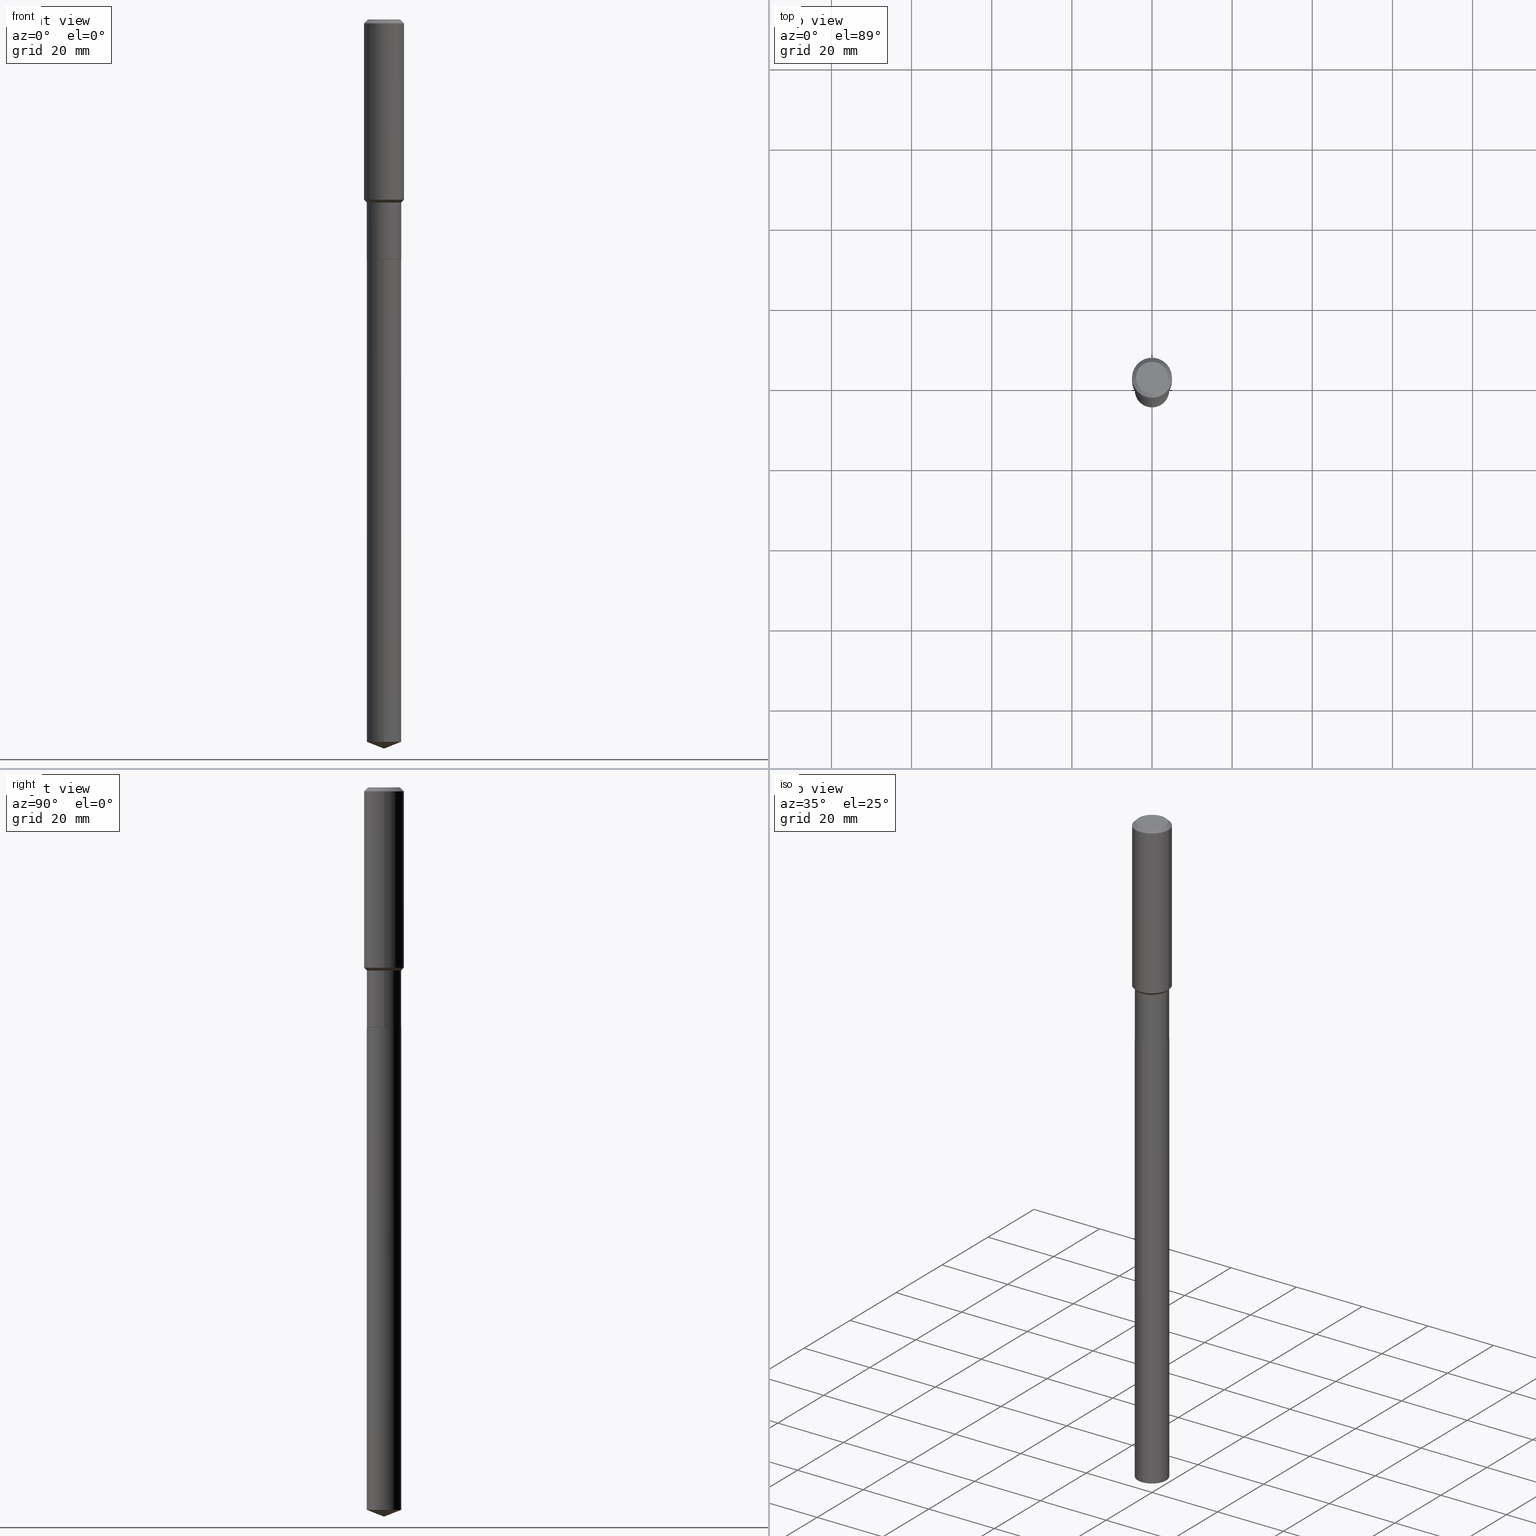
[diagram: canonical four-view strip — front | top / right | iso, engineering-drawing reading convention]
A machine part, canonical four-view strip (front | top / right | iso — engineering-drawing reading convention). The complete STEP part file that produces these views, byte-faithful:
ISO-10303-21;
HEADER;
FILE_DESCRIPTION (( 'STEP AP203' ),
    '1' );
FILE_NAME ('66765.STEP',
    '2024-04-25T05:38:47',
    ( '' ),
    ( '' ),
    'SwSTEP 2.0',
    'SolidWorks 2023',
    '' );
FILE_SCHEMA (( 'CONFIG_CONTROL_DESIGN' ));
ENDSEC;

DATA;
#1 = DIRECTION ( 'NONE',  ( 1.000000000000000000, -6.982962677686260400E-15, 0.000000000000000000 ) ) ;
#2 = FACE_OUTER_BOUND ( 'NONE', #262, .T. ) ;
#3 = CARTESIAN_POINT ( 'NONE',  ( 1.202948851642023404E-15, 0.1692999999999752758, -7.098310956478392164 ) ) ;
#4 = AXIS2_PLACEMENT_3D ( 'NONE', #371, #470, #468 ) ;
#5 = CC_DESIGN_APPROVAL ( #312, ( #393 ) ) ;
#6 = ADVANCED_FACE ( 'NONE', ( #391 ), #267, .T. ) ;
#7 = CYLINDRICAL_SURFACE ( 'NONE', #154, 0.1692999999999999783 ) ;
#8 = APPROVAL_STATUS ( 'not_yet_approved' ) ;
#9 = VERTEX_POINT ( 'NONE', #83 ) ;
#10 = CARTESIAN_POINT ( 'NONE',  ( 4.399887476088297056E-29, -6.281873224846586144E-15, -1.799199999999999688 ) ) ;
#11 = CARTESIAN_POINT ( 'NONE',  ( -0.1692999999999999783, 1.202948851641849460E-15, -8.327757107801554310E-30 ) ) ;
#12 = ADVANCED_FACE ( 'NONE', ( #81 ), #278, .T. ) ;
#13 = AXIS2_PLACEMENT_3D ( 'NONE', #426, #281, #244 ) ;
#14 = DIRECTION ( 'NONE',  ( -2.445468806185136597E-29, 3.491481338843145583E-15, 1.000000000000000000 ) ) ;
#15 = PERSON_AND_ORGANIZATION ( #447, #261 ) ;
#16 = DIRECTION ( 'NONE',  ( 1.000000000000000000, -6.982962677686266711E-15, 0.000000000000000000 ) ) ;
#17 = PERSON_AND_ORGANIZATION ( #447, #261 ) ;
#18 = DIRECTION ( 'NONE',  ( 1.000000000000000000, -6.982962677686265922E-15, 0.000000000000000000 ) ) ;
#19 = EDGE_CURVE ( 'NONE', #31, #99, #120, .T. ) ;
#20 = VECTOR ( 'NONE', #328, 39.37007874015748143 ) ;
#21 = APPROVAL_DATE_TIME ( #369, #312 ) ;
#22 = ADVANCED_FACE ( 'NONE', ( #392 ), #226, .T. ) ;
#23 = VERTEX_POINT ( 'NONE', #187 ) ;
#24 = ADVANCED_FACE ( 'NONE', ( #359 ), #461, .T. ) ;
#25 = VERTEX_POINT ( 'NONE', #355 ) ;
#26 = AXIS2_PLACEMENT_3D ( 'NONE', #264, #107, #159 ) ;
#27 =( GEOMETRIC_REPRESENTATION_CONTEXT ( 3 ) GLOBAL_UNCERTAINTY_ASSIGNED_CONTEXT ( ( #343 ) ) GLOBAL_UNIT_ASSIGNED_CONTEXT ( ( #340, #207, #139 ) ) REPRESENTATION_CONTEXT ( 'NONE', 'WORKASPACE' ) );
#28 = VERTEX_POINT ( 'NONE', #3 ) ;
#29 = DIRECTION ( 'NONE',  ( 1.000000000000000000, -6.982962677686265922E-15, 0.000000000000000000 ) ) ;
#30 = MANIFOLD_SOLID_BREP ( 'Body-Move/Copy2[1]', #208 ) ;
#31 = VERTEX_POINT ( 'NONE', #162 ) ;
#32 = DIRECTION ( 'NONE',  ( -2.445468806185136877E-29, 3.491481338843145188E-15, 1.000000000000000000 ) ) ;
#33 = ORIENTED_EDGE ( 'NONE', *, *, #381, .T. ) ;
#34 = CARTESIAN_POINT ( 'NONE',  ( 1.735857678441068826E-28, -2.478379385907393533E-14, -7.098310956478391276 ) ) ;
#35 = VECTOR ( 'NONE', #282, 39.37007874015748143 ) ;
#36 = ORIENTED_EDGE ( 'NONE', *, *, #149, .F. ) ;
#37 = MANIFOLD_SOLID_BREP ( 'Body-Move/Copy2[2]', #200 ) ;
#38 = DIRECTION ( 'NONE',  ( -2.445443231132570637E-29, 3.491517963774061595E-15, 1.000000000000000000 ) ) ;
#39 = ORIENTED_EDGE ( 'NONE', *, *, #388, .F. ) ;
#40 = FACE_OUTER_BOUND ( 'NONE', #410, .T. ) ;
#41 = ORIENTED_EDGE ( 'NONE', *, *, #157, .T. ) ;
#42 = CC_DESIGN_DATE_AND_TIME_ASSIGNMENT ( #191, #131, ( #104 ) ) ;
#43 = CARTESIAN_POINT ( 'NONE',  ( -0.1968500000000002192, -4.786979538617699171E-15, -1.771649999999999725 ) ) ;
#44 = ORIENTED_EDGE ( 'NONE', *, *, #64, .F. ) ;
#45 = CIRCLE ( 'NONE', #4, 0.1688000000000000334 ) ;
#46 = CIRCLE ( 'NONE', #130, 0.1692999999999999505 ) ;
#47 = CARTESIAN_POINT ( 'NONE',  ( -0.1693000000000000338, -6.053396814875857644E-15, -2.357399999999999718 ) ) ;
#48 = ORIENTED_EDGE ( 'NONE', *, *, #165, .F. ) ;
#49 = CARTESIAN_POINT ( 'NONE',  ( 0.1968500000000001082, -1.374596203102542397E-15, 9.598753983154305062E-30 ) ) ;
#50 = DIRECTION ( 'NONE',  ( 6.611014441532069744E-15, 0.9304175679820275713, 0.3665012267242894195 ) ) ;
#51 = ADVANCED_FACE ( 'NONE', ( #164 ), #133, .T. ) ;
#52 = AXIS2_PLACEMENT_3D ( 'NONE', #123, #323, #367 ) ;
#53 = CARTESIAN_POINT ( 'NONE',  ( -0.1968500000000000250, 1.237136582792286225E-15, -0.03937000000000026589 ) ) ;
#54 = CARTESIAN_POINT ( 'NONE',  ( 0.000000000000000000, 0.000000000000000000, 0.000000000000000000 ) ) ;
#55 = DATE_TIME_ROLE ( 'creation_date' ) ;
#56 = DIRECTION ( 'NONE',  ( -2.445468806185136597E-29, 3.491481338843145583E-15, 1.000000000000000000 ) ) ;
#57 = ADVANCED_FACE ( 'NONE', ( #89 ), #372, .T. ) ;
#58 = APPROVAL_DATE_TIME ( #134, #178 ) ;
#59 = DIRECTION ( 'NONE',  ( -6.497071151882122203E-15, -0.9304175679820250178, 0.3665012267242960253 ) ) ;
#60 = AXIS2_PLACEMENT_3D ( 'NONE', #126, #212, #304 ) ;
#61 = EDGE_CURVE ( 'NONE', #458, #306, #403, .T. ) ;
#62 = PERSON_AND_ORGANIZATION_ROLE ( 'design_supplier' ) ;
#63 = ORIENTED_EDGE ( 'NONE', *, *, #165, .T. ) ;
#64 = EDGE_CURVE ( 'NONE', #306, #231, #167, .T. ) ;
#65 = EDGE_LOOP ( 'NONE', ( #101, #33 ) ) ;
#66 = ORIENTED_EDGE ( 'NONE', *, *, #342, .T. ) ;
#67 = VECTOR ( 'NONE', #158, 39.37007874015748143 ) ;
#68 = CC_DESIGN_SECURITY_CLASSIFICATION ( #104, ( #393 ) ) ;
#69 = EDGE_LOOP ( 'NONE', ( #147, #416 ) ) ;
#70 = ORIENTED_EDGE ( 'NONE', *, *, #475, .F. ) ;
#71 = CC_DESIGN_PERSON_AND_ORGANIZATION_ASSIGNMENT ( #17, #249, ( #393 ) ) ;
#72 = DIRECTION ( 'NONE',  ( -2.445468806185136597E-29, 3.491481338843145583E-15, 1.000000000000000000 ) ) ;
#73 = DIRECTION ( 'NONE',  ( 2.445468806185136597E-29, -3.491481338843145583E-15, -1.000000000000000000 ) ) ;
#74 = CARTESIAN_POINT ( 'NONE',  ( 0.1968500000000000250, -1.512055823412797189E-15, -0.03937000000000026589 ) ) ;
#75 = VECTOR ( 'NONE', #32, 39.37007874015748143 ) ;
#76 = EDGE_LOOP ( 'NONE', ( #489, #383, #437, #39 ) ) ;
#77 = CARTESIAN_POINT ( 'NONE',  ( -1.182215581332227426E-15, -0.1693000000000082494, -2.357899999999998997 ) ) ;
#78 = EDGE_CURVE ( 'NONE', #99, #31, #45, .T. ) ;
#79 = EDGE_LOOP ( 'NONE', ( #277, #455, #441, #272 ) ) ;
#80 = CARTESIAN_POINT ( 'NONE',  ( 0.1968500000000000250, -1.487948651171581601E-15, -0.03937000000000026589 ) ) ;
#81 = FACE_OUTER_BOUND ( 'NONE', #174, .T. ) ;
#82 = LINE ( 'NONE', #400, #462 ) ;
#83 = CARTESIAN_POINT ( 'NONE',  ( 0.1692999999999999505, -7.464088806178870959E-15, -1.799199999999999688 ) ) ;
#84 = CIRCLE ( 'NONE', #145, 0.1693000000000000338 ) ;
#85 = APPROVAL_PERSON_ORGANIZATION ( #374, #312, #203 ) ;
#86 = CARTESIAN_POINT ( 'NONE',  ( -0.1574800000000000089, 1.168406772637159618E-15, 3.855188123707939751E-18 ) ) ;
#87 = DIRECTION ( 'NONE',  ( -2.445443231132570637E-29, 3.491517963774061595E-15, 1.000000000000000000 ) ) ;
#88 = CARTESIAN_POINT ( 'NONE',  ( 5.764948163700840429E-29, -8.230818108188830037E-15, -2.357399999999999718 ) ) ;
#89 = FACE_OUTER_BOUND ( 'NONE', #76, .T. ) ;
#90 = PERSON_AND_ORGANIZATION_ROLE ( 'creator' ) ;
#91 = LINE ( 'NONE', #362, #35 ) ;
#92 = EDGE_CURVE ( 'NONE', #25, #409, #313, .T. ) ;
#93 = AXIS2_PLACEMENT_3D ( 'NONE', #358, #72, #350 ) ;
#94 = CIRCLE ( 'NONE', #245, 0.1968500000000002192 ) ;
#95 = COORDINATED_UNIVERSAL_TIME_OFFSET ( 5, 0, .BEHIND. ) ;
#96 = DIRECTION ( 'NONE',  ( -2.445468806185136597E-29, 3.491481338843145583E-15, 1.000000000000000000 ) ) ;
#97 = CC_DESIGN_PERSON_AND_ORGANIZATION_ASSIGNMENT ( #318, #474, ( #104 ) ) ;
#98 = DIRECTION ( 'NONE',  ( 6.982962677686265922E-15, 1.000000000000000000, -3.491517963774061595E-15 ) ) ;
#99 = VERTEX_POINT ( 'NONE', #202 ) ;
#100 = CIRCLE ( 'NONE', #356, 0.1693000000000000338 ) ;
#101 = ORIENTED_EDGE ( 'NONE', *, *, #270, .T. ) ;
#102 = ORIENTED_EDGE ( 'NONE', *, *, #241, .F. ) ;
#103 = CIRCLE ( 'NONE', #220, 0.1693000000000000338 ) ;
#104 = SECURITY_CLASSIFICATION ( '', '', #168 ) ;
#105 = ORIENTED_EDGE ( 'NONE', *, *, #78, .F. ) ;
#106 = CARTESIAN_POINT ( 'NONE',  ( -4.713871149261283817E-47, 6.730158695841841775E-33, 1.927594061857935365E-18 ) ) ;
#107 = DIRECTION ( 'NONE',  ( -2.445443231132570637E-29, 3.491517963774061595E-15, 1.000000000000000000 ) ) ;
#108 = ADVANCED_FACE ( 'NONE', ( #288 ), #240, .F. ) ;
#109 = DIRECTION ( 'NONE',  ( 1.000000000000000000, -6.982962677686266711E-15, 0.000000000000000000 ) ) ;
#110 = DIRECTION ( 'NONE',  ( -1.000000000000000000, 6.982962677686265922E-15, 0.000000000000000000 ) ) ;
#111 = EDGE_CURVE ( 'NONE', #31, #345, #325, .T. ) ;
#112 = LINE ( 'NONE', #344, #386 ) ;
#113 = CONICAL_SURFACE ( 'NONE', #445, 0.1692999999999999505, 0.7853981633974513876 ) ;
#114 = DIRECTION ( 'NONE',  ( 1.000000000000000000, -6.982962677686260400E-15, 0.000000000000000000 ) ) ;
#115 = FACE_OUTER_BOUND ( 'NONE', #180, .T. ) ;
#116 = APPROVAL_STATUS ( 'not_yet_approved' ) ;
#117 = ORIENTED_EDGE ( 'NONE', *, *, #388, .T. ) ;
#118 = DIRECTION ( 'NONE',  ( -6.982962677686268288E-15, -1.000000000000000000, 3.498627837349993178E-15 ) ) ;
#119 = FACE_OUTER_BOUND ( 'NONE', #177, .T. ) ;
#120 = CIRCLE ( 'NONE', #219, 0.1688000000000000334 ) ;
#121 = CARTESIAN_POINT ( 'NONE',  ( 5.766170898103932109E-29, -8.232563848858250751E-15, -2.357899999999999441 ) ) ;
#122 = CC_DESIGN_APPROVAL ( #258, ( #251 ) ) ;
#123 = CARTESIAN_POINT ( 'NONE',  ( 5.766170898103932109E-29, -8.232563848858250751E-15, -2.357899999999999441 ) ) ;
#124 = DIRECTION ( 'NONE',  ( 0.7071067811866199593, -2.468850131083015945E-15, 0.7071067811864750752 ) ) ;
#125 = DIRECTION ( 'NONE',  ( -2.445468806185136597E-29, 3.491481338843145583E-15, 1.000000000000000000 ) ) ;
#126 = CARTESIAN_POINT ( 'NONE',  ( 0.000000000000000000, 0.000000000000000000, 0.000000000000000000 ) ) ;
#127 = ADVANCED_FACE ( 'NONE', ( #283 ), #242, .T. ) ;
#128 = CYLINDRICAL_SURFACE ( 'NONE', #424, 0.1968500000000001082 ) ;
#129 = CARTESIAN_POINT ( 'NONE',  ( 1.752160075106486732E-28, -2.501672621044114802E-14, -7.165000000000000036 ) ) ;
#130 = AXIS2_PLACEMENT_3D ( 'NONE', #10, #427, #16 ) ;
#131 = DATE_TIME_ROLE ( 'classification_date' ) ;
#132 = CARTESIAN_POINT ( 'NONE',  ( 0.1693000000000000338, -9.413033689521114852E-15, -2.357399999999999718 ) ) ;
#133 = CYLINDRICAL_SURFACE ( 'NONE', #294, 0.1692999999999999783 ) ;
#134 = DATE_AND_TIME ( #476, #486 ) ;
#135 = VERTEX_POINT ( 'NONE', #43 ) ;
#136 = EDGE_CURVE ( 'NONE', #409, #25, #322, .T. ) ;
#137 = CIRCLE ( 'NONE', #378, 0.1968500000000000250 ) ;
#138 = ORIENTED_EDGE ( 'NONE', *, *, #157, .F. ) ;
#139 =( NAMED_UNIT ( * ) SI_UNIT ( $, .STERADIAN. ) SOLID_ANGLE_UNIT ( ) );
#140 = PERSON_AND_ORGANIZATION_ROLE ( 'design_owner' ) ;
#141 = VERTEX_POINT ( 'NONE', #74 ) ;
#142 = CC_DESIGN_PERSON_AND_ORGANIZATION_ASSIGNMENT ( #15, #90, ( #251 ) ) ;
#143 = ORIENTED_EDGE ( 'NONE', *, *, #172, .T. ) ;
#144 = AXIS2_PLACEMENT_3D ( 'NONE', #192, #452, #114 ) ;
#145 = AXIS2_PLACEMENT_3D ( 'NONE', #34, #38, #490 ) ;
#146 = FACE_OUTER_BOUND ( 'NONE', #483, .T. ) ;
#147 = ORIENTED_EDGE ( 'NONE', *, *, #136, .T. ) ;
#148 = CARTESIAN_POINT ( 'NONE',  ( 9.627810689950948900E-31, -1.374596203102555561E-16, -0.03937000000000026589 ) ) ;
#149 = EDGE_CURVE ( 'NONE', #306, #28, #100, .T. ) ;
#150 = DIRECTION ( 'NONE',  ( -6.982962677686265922E-15, -1.000000000000000000, 6.454454798970496795E-15 ) ) ;
#151 = ORIENTED_EDGE ( 'NONE', *, *, #19, .T. ) ;
#152 = APPLICATION_CONTEXT ( 'configuration controlled 3d designs of mechanical parts and assemblies' ) ;
#153 = CARTESIAN_POINT ( 'NONE',  ( 4.399887476088297056E-29, -6.281873224846586144E-15, -1.799199999999999688 ) ) ;
#154 = AXIS2_PLACEMENT_3D ( 'NONE', #232, #315, #224 ) ;
#155 = APPROVAL_PERSON_ORGANIZATION ( #310, #258, #366 ) ;
#156 = ORIENTED_EDGE ( 'NONE', *, *, #466, .T. ) ;
#157 = EDGE_CURVE ( 'NONE', #25, #141, #186, .T. ) ;
#158 = DIRECTION ( 'NONE',  ( 0.7071067811865452413, -7.319954787623248157E-15, -0.7071067811865497932 ) ) ;
#159 = DIRECTION ( 'NONE',  ( -6.982962677686265922E-15, -1.000000000000000000, 3.227227399485248397E-15 ) ) ;
#160 = DIRECTION ( 'NONE',  ( 0.7071067811865496822, -2.468850131082279149E-15, 0.7071067811865453523 ) ) ;
#161 = CARTESIAN_POINT ( 'NONE',  ( 4.399887476088297056E-29, -6.281873224846586144E-15, -1.799199999999999688 ) ) ;
#162 = CARTESIAN_POINT ( 'NONE',  ( 0.1688000000000000334, -9.411287948851692560E-15, -2.357899999999999441 ) ) ;
#163 = CARTESIAN_POINT ( 'NONE',  ( 4.399887476088297056E-29, -6.281873224846586144E-15, -1.799199999999999688 ) ) ;
#164 = FACE_OUTER_BOUND ( 'NONE', #440, .T. ) ;
#165 = EDGE_CURVE ( 'NONE', #23, #141, #137, .T. ) ;
#166 = LINE ( 'NONE', #467, #237 ) ;
#167 = LINE ( 'NONE', #321, #485 ) ;
#168 = SECURITY_CLASSIFICATION_LEVEL ( 'unclassified' ) ;
#169 = CARTESIAN_POINT ( 'NONE',  ( -0.1688000000000000334, -7.033167710895201992E-15, -2.357899999999999441 ) ) ;
#170 = AXIS2_PLACEMENT_3D ( 'NONE', #419, #204, #370 ) ;
#171 = APPROVAL_ROLE ( '' ) ;
#172 = EDGE_CURVE ( 'NONE', #334, #135, #112, .T. ) ;
#173 = EDGE_LOOP ( 'NONE', ( #293, #218, #215, #44 ) ) ;
#174 = EDGE_LOOP ( 'NONE', ( #316, #41, #302, #389 ) ) ;
#175 = ADVANCED_FACE ( 'NONE', ( #146 ), #7, .T. ) ;
#176 = AXIS2_PLACEMENT_3D ( 'NONE', #365, #14, #29 ) ;
#177 = EDGE_LOOP ( 'NONE', ( #341, #143, #375, #301 ) ) ;
#178 = APPROVAL ( #430, 'UNSPECIFIED' ) ;
#179 = DIRECTION ( 'NONE',  ( -2.445443231132570637E-29, 3.491517963774061595E-15, 1.000000000000000000 ) ) ;
#180 = EDGE_LOOP ( 'NONE', ( #448, #105 ) ) ;
#181 = AXIS2_PLACEMENT_3D ( 'NONE', #183, #73, #352 ) ;
#182 = LINE ( 'NONE', #417, #75 ) ;
#183 = CARTESIAN_POINT ( 'NONE',  ( 9.627810689950948900E-31, -1.374596203102555561E-16, -0.03937000000000026589 ) ) ;
#184 = CARTESIAN_POINT ( 'NONE',  ( -7.875563150979312128E-28, 1.124446973039425706E-13, 32.20507874015748229 ) ) ;
#185 = ORIENTED_EDGE ( 'NONE', *, *, #214, .F. ) ;
#186 = LINE ( 'NONE', #80, #67 ) ;
#187 = CARTESIAN_POINT ( 'NONE',  ( -0.1968500000000000250, -1.762867891792098679E-15, -0.03937000000000026589 ) ) ;
#188 = FACE_OUTER_BOUND ( 'NONE', #173, .T. ) ;
#189 = AXIS2_PLACEMENT_3D ( 'NONE', #121, #248, #98 ) ;
#190 = VECTOR ( 'NONE', #463, 39.37007874015748143 ) ;
#191 = DATE_AND_TIME ( #330, #373 ) ;
#192 = CARTESIAN_POINT ( 'NONE',  ( 5.766170898103932109E-29, -8.232563848858250751E-15, -2.357899999999999441 ) ) ;
#193 = CC_DESIGN_DATE_AND_TIME_ASSIGNMENT ( #284, #55, ( #251 ) ) ;
#194 = CARTESIAN_POINT ( 'NONE',  ( 5.764948163700840429E-29, -8.230818108188830037E-15, -2.357399999999999718 ) ) ;
#195 = ORIENTED_EDGE ( 'NONE', *, *, #381, .F. ) ;
#196 = LINE ( 'NONE', #198, #190 ) ;
#197 = CARTESIAN_POINT ( 'NONE',  ( -9.427742298522567634E-47, 1.346031739168368355E-32, 3.855188123715870730E-18 ) ) ;
#198 = CARTESIAN_POINT ( 'NONE',  ( 1.202948851641907244E-15, 0.1692999999999917904, -2.357899999999999885 ) ) ;
#199 = ADVANCED_FACE ( 'NONE', ( #446 ), #432, .T. ) ;
#200 = CLOSED_SHELL ( 'NONE', ( #22, #12, #127, #291, #51, #175, #265, #402, #24, #210, #274, #57 ) ) ;
#201 = LINE ( 'NONE', #169, #380 ) ;
#202 = CARTESIAN_POINT ( 'NONE',  ( -0.1688000000000000334, -7.030518483721091580E-15, -2.357899999999999441 ) ) ;
#203 = APPROVAL_ROLE ( '' ) ;
#204 = DIRECTION ( 'NONE',  ( -2.438088387897960049E-29, 3.491481338843145188E-15, 1.000000000000000000 ) ) ;
#205 = ADVANCED_FACE ( 'NONE', ( #188 ), #317, .T. ) ;
#206 = SHAPE_DEFINITION_REPRESENTATION ( #292, #347 ) ;
#207 =( NAMED_UNIT ( * ) PLANE_ANGLE_UNIT ( ) SI_UNIT ( $, .RADIAN. ) );
#208 = CLOSED_SHELL ( 'NONE', ( #205, #199, #234, #6, #108 ) ) ;
#209 = APPROVAL_PERSON_ORGANIZATION ( #289, #178, #171 ) ;
#210 = ADVANCED_FACE ( 'NONE', ( #484 ), #421, .F. ) ;
#211 = PERSON_AND_ORGANIZATION ( #447, #261 ) ;
#212 = DIRECTION ( 'NONE',  ( -2.445468806185136597E-29, 3.491481338843145583E-15, 1.000000000000000000 ) ) ;
#213 = EDGE_LOOP ( 'NONE', ( #479, #482, #36 ) ) ;
#214 = EDGE_CURVE ( 'NONE', #28, #306, #84, .T. ) ;
#215 = ORIENTED_EDGE ( 'NONE', *, *, #270, .F. ) ;
#216 = EDGE_CURVE ( 'NONE', #345, #9, #182, .T. ) ;
#217 = PERSON_AND_ORGANIZATION ( #447, #261 ) ;
#218 = ORIENTED_EDGE ( 'NONE', *, *, #475, .T. ) ;
#219 = AXIS2_PLACEMENT_3D ( 'NONE', #311, #349, #1 ) ;
#220 = AXIS2_PLACEMENT_3D ( 'NONE', #221, #179, #266 ) ;
#221 = CARTESIAN_POINT ( 'NONE',  ( 5.766170898103932109E-29, -8.232563848858250751E-15, -2.357899999999999441 ) ) ;
#222 = ORIENTED_EDGE ( 'NONE', *, *, #241, .T. ) ;
#223 = APPLICATION_CONTEXT ( 'configuration controlled 3d designs of mechanical parts and assemblies' ) ;
#224 = DIRECTION ( 'NONE',  ( 1.000000000000000000, -6.982962677686266711E-15, 4.876176775795935793E-29 ) ) ;
#225 = ORIENTED_EDGE ( 'NONE', *, *, #368, .F. ) ;
#226 = CONICAL_SURFACE ( 'NONE', #144, 0.1688000000000000334, 0.7853981633975507526 ) ;
#227 = DIRECTION ( 'NONE',  ( -6.982962677686268288E-15, -1.000000000000000000, 3.498627837349993178E-15 ) ) ;
#228 = ORIENTED_EDGE ( 'NONE', *, *, #442, .T. ) ;
#229 = CARTESIAN_POINT ( 'NONE',  ( 0.000000000000000000, 0.000000000000000000, 0.000000000000000000 ) ) ;
#230 = DIRECTION ( 'NONE',  ( -0.7071067811865496822, 7.493145998870362049E-15, 0.7071067811865453523 ) ) ;
#231 = VERTEX_POINT ( 'NONE', #77 ) ;
#232 = CARTESIAN_POINT ( 'NONE',  ( 0.000000000000000000, 0.000000000000000000, 0.000000000000000000 ) ) ;
#233 = ORIENTED_EDGE ( 'NONE', *, *, #429, .T. ) ;
#234 = ADVANCED_FACE ( 'NONE', ( #2 ), #438, .T. ) ;
#235 = LINE ( 'NONE', #53, #20 ) ;
#236 = AXIS2_PLACEMENT_3D ( 'NONE', #454, #263, #227 ) ;
#237 = VECTOR ( 'NONE', #50, 39.37007874015748854 ) ;
#238 = EDGE_LOOP ( 'NONE', ( #138, #275, #254, #63 ) ) ;
#239 = CARTESIAN_POINT ( 'NONE',  ( 1.752160075106486732E-28, -2.501672621044114802E-14, -7.165000000000000036 ) ) ;
#240 = PLANE ( 'NONE',  #189 ) ;
#241 = EDGE_CURVE ( 'NONE', #135, #361, #364, .T. ) ;
#242 = CYLINDRICAL_SURFACE ( 'NONE', #60, 0.1968500000000001082 ) ;
#243 = DIRECTION ( 'NONE',  ( 1.000000000000000000, -6.982962677686266711E-15, 4.876176775795935793E-29 ) ) ;
#244 = DIRECTION ( 'NONE',  ( 1.000000000000000000, -6.982962677686260400E-15, 0.000000000000000000 ) ) ;
#245 = AXIS2_PLACEMENT_3D ( 'NONE', #326, #459, #18 ) ;
#246 = DATE_AND_TIME ( #433, #435 ) ;
#247 = DIRECTION ( 'NONE',  ( 1.000000000000000000, -6.982962677686266711E-15, 0.000000000000000000 ) ) ;
#248 = DIRECTION ( 'NONE',  ( 2.445443231132570357E-29, -3.491517963774061595E-15, -1.000000000000000000 ) ) ;
#249 = PERSON_AND_ORGANIZATION_ROLE ( 'creator' ) ;
#250 = DIRECTION ( 'NONE',  ( -2.445468806185136597E-29, 3.491481338843145583E-15, 1.000000000000000000 ) ) ;
#251 = PRODUCT_DEFINITION ( 'UNKNOWN', '', #393, #299 ) ;
#252 = CALENDAR_DATE ( 2024, 25, 4 ) ;
#253 = VECTOR ( 'NONE', #124, 39.37007874015748143 ) ;
#254 = ORIENTED_EDGE ( 'NONE', *, *, #423, .T. ) ;
#255 = AXIS2_PLACEMENT_3D ( 'NONE', #163, #125, #331 ) ;
#256 = ORIENTED_EDGE ( 'NONE', *, *, #216, .F. ) ;
#257 =( LENGTH_UNIT ( ) NAMED_UNIT ( * ) SI_UNIT ( $, .METRE. ) );
#258 = APPROVAL ( #116, 'UNSPECIFIED' ) ;
#259 = ORIENTED_EDGE ( 'NONE', *, *, #172, .F. ) ;
#260 = ORIENTED_EDGE ( 'NONE', *, *, #305, .F. ) ;
#261 = ORGANIZATION ( 'UNSPECIFIED', 'UNSPECIFIED', '' ) ;
#262 = EDGE_LOOP ( 'NONE', ( #338, #296, #185 ) ) ;
#263 = DIRECTION ( 'NONE',  ( -2.445443231132570637E-29, 3.491517963774061595E-15, 1.000000000000000000 ) ) ;
#264 = CARTESIAN_POINT ( 'NONE',  ( 5.766170898103932109E-29, -8.232563848858250751E-15, -2.357899999999999441 ) ) ;
#265 = ADVANCED_FACE ( 'NONE', ( #40 ), #113, .T. ) ;
#266 = DIRECTION ( 'NONE',  ( -6.982962677686265922E-15, -1.000000000000000000, 3.227227399485248397E-15 ) ) ;
#267 = CYLINDRICAL_SURFACE ( 'NONE', #26, 0.1693000000000000338 ) ;
#268 = AXIS2_PLACEMENT_3D ( 'NONE', #184, #456, #118 ) ;
#269 = AXIS2_PLACEMENT_3D ( 'NONE', #161, #96, #247 ) ;
#270 = EDGE_CURVE ( 'NONE', #231, #395, #103, .T. ) ;
#271 = CARTESIAN_POINT ( 'NONE',  ( 5.766170898103932109E-29, -8.232563848858250751E-15, -2.357899999999999441 ) ) ;
#272 = ORIENTED_EDGE ( 'NONE', *, *, #466, .F. ) ;
#273 = PLANE ( 'NONE',  #170 ) ;
#274 = ADVANCED_FACE ( 'NONE', ( #115 ), #273, .F. ) ;
#275 = ORIENTED_EDGE ( 'NONE', *, *, #136, .F. ) ;
#276 = DIRECTION ( 'NONE',  ( -2.445443231132570637E-29, 3.491517963774061595E-15, 1.000000000000000000 ) ) ;
#277 = ORIENTED_EDGE ( 'NONE', *, *, #298, .T. ) ;
#278 = CONICAL_SURFACE ( 'NONE', #181, 0.1968500000000000250, 0.7853981633974450594 ) ;
#279 = CARTESIAN_POINT ( 'NONE',  ( 0.1968500000000002192, -7.560279117064000145E-15, -1.771649999999999725 ) ) ;
#280 = AXIS2_PLACEMENT_3D ( 'NONE', #229, #478, #295 ) ;
#281 = DIRECTION ( 'NONE',  ( -2.445468806185136597E-29, 3.491481338843145583E-15, 1.000000000000000000 ) ) ;
#282 = DIRECTION ( 'NONE',  ( -2.445468806185136877E-29, 3.491481338843145188E-15, 1.000000000000000000 ) ) ;
#283 = FACE_OUTER_BOUND ( 'NONE', #79, .T. ) ;
#284 = DATE_AND_TIME ( #252, #487 ) ;
#285 = CARTESIAN_POINT ( 'NONE',  ( -1.182215581332111660E-15, -0.1693000000000248473, -7.098310956478389500 ) ) ;
#286 = DIRECTION ( 'NONE',  ( -2.445468806185136597E-29, 3.491481338843145583E-15, 1.000000000000000000 ) ) ;
#287 = AXIS2_PLACEMENT_3D ( 'NONE', #197, #460, #363 ) ;
#288 = FACE_OUTER_BOUND ( 'NONE', #65, .T. ) ;
#289 = PERSON_AND_ORGANIZATION ( #447, #261 ) ;
#290 = CARTESIAN_POINT ( 'NONE',  ( 1.202948851642024193E-15, 0.1692999999999917904, -2.357899999999999885 ) ) ;
#291 = ADVANCED_FACE ( 'NONE', ( #119 ), #357, .T. ) ;
#292 = PRODUCT_DEFINITION_SHAPE ( 'NONE', 'NONE',  #251 ) ;
#293 = ORIENTED_EDGE ( 'NONE', *, *, #149, .T. ) ;
#294 = AXIS2_PLACEMENT_3D ( 'NONE', #54, #250, #428 ) ;
#295 = DIRECTION ( 'NONE',  ( 1.000000000000000000, 0.000000000000000000, 0.000000000000000000 ) ) ;
#296 = ORIENTED_EDGE ( 'NONE', *, *, #61, .T. ) ;
#297 = AXIS2_PLACEMENT_3D ( 'NONE', #88, #394, #320 ) ;
#298 = EDGE_CURVE ( 'NONE', #361, #135, #94, .T. ) ;
#299 = DESIGN_CONTEXT ( 'detailed design', #152, 'design' ) ;
#300 = ORIENTED_EDGE ( 'NONE', *, *, #64, .T. ) ;
#301 = ORIENTED_EDGE ( 'NONE', *, *, #342, .F. ) ;
#302 = ORIENTED_EDGE ( 'NONE', *, *, #481, .T. ) ;
#303 = CIRCLE ( 'NONE', #176, 0.1968500000000000250 ) ;
#304 = DIRECTION ( 'NONE',  ( 1.000000000000000000, -6.982962677686266711E-15, 4.876176775795935793E-29 ) ) ;
#305 = EDGE_CURVE ( 'NONE', #9, #334, #46, .T. ) ;
#306 = VERTEX_POINT ( 'NONE', #285 ) ;
#307 = DIRECTION ( 'NONE',  ( -6.982962677686265922E-15, -1.000000000000000000, 3.227227399485248397E-15 ) ) ;
#308 = DIRECTION ( 'NONE',  ( 2.445468806185136597E-29, -3.491481338843145583E-15, -1.000000000000000000 ) ) ;
#309 = CARTESIAN_POINT ( 'NONE',  ( 9.627810689950948900E-31, -1.374596203102555561E-16, -0.03937000000000026589 ) ) ;
#310 = PERSON_AND_ORGANIZATION ( #447, #261 ) ;
#311 = CARTESIAN_POINT ( 'NONE',  ( 5.766170898103932109E-29, -8.232563848858250751E-15, -2.357899999999999441 ) ) ;
#312 = APPROVAL ( #8, 'UNSPECIFIED' ) ;
#313 = CIRCLE ( 'NONE', #287, 0.1574800000000000089 ) ;
#314 = CIRCLE ( 'NONE', #269, 0.1692999999999999505 ) ;
#315 = DIRECTION ( 'NONE',  ( -2.445468806185136597E-29, 3.491481338843145583E-15, 1.000000000000000000 ) ) ;
#316 = ORIENTED_EDGE ( 'NONE', *, *, #92, .F. ) ;
#317 = CYLINDRICAL_SURFACE ( 'NONE', #412, 0.1693000000000000338 ) ;
#318 = PERSON_AND_ORGANIZATION ( #447, #261 ) ;
#319 = ORIENTED_EDGE ( 'NONE', *, *, #111, .F. ) ;
#320 = DIRECTION ( 'NONE',  ( 1.000000000000000000, -6.982962677686263555E-15, 0.000000000000000000 ) ) ;
#321 = CARTESIAN_POINT ( 'NONE',  ( -1.182215581332227426E-15, -0.1693000000000082494, -2.357899999999998997 ) ) ;
#322 = CIRCLE ( 'NONE', #93, 0.1574800000000000089 ) ;
#323 = DIRECTION ( 'NONE',  ( -2.445443231132570637E-29, 3.491517963774061595E-15, 1.000000000000000000 ) ) ;
#324 = AXIS2_PLACEMENT_3D ( 'NONE', #194, #56, #360 ) ;
#325 = LINE ( 'NONE', #465, #253 ) ;
#326 = CARTESIAN_POINT ( 'NONE',  ( 4.332514810477896474E-29, -6.185682913961458537E-15, -1.771649999999999725 ) ) ;
#327 = COORDINATED_UNIVERSAL_TIME_OFFSET ( 5, 0, .BEHIND. ) ;
#328 = DIRECTION ( 'NONE',  ( -0.7071067811865452413, 2.468850131082233000E-15, -0.7071067811865497932 ) ) ;
#329 = EDGE_CURVE ( 'NONE', #99, #450, #201, .T. ) ;
#330 = CALENDAR_DATE ( 2024, 25, 4 ) ;
#331 = DIRECTION ( 'NONE',  ( 1.000000000000000000, -6.982962677686266711E-15, 0.000000000000000000 ) ) ;
#332 = LOCAL_TIME ( 1, 38, 47.00000000000000000, #406 ) ;
#333 = APPROVAL_DATE_TIME ( #246, #258 ) ;
#334 = VERTEX_POINT ( 'NONE', #473 ) ;
#335 = AXIS2_PLACEMENT_3D ( 'NONE', #348, #488, #390 ) ;
#336 = VECTOR ( 'NONE', #404, 39.37007874015748143 ) ;
#337 = APPLICATION_PROTOCOL_DEFINITION ( 'international standard', 'config_control_design', 1994, #223 ) ;
#338 = ORIENTED_EDGE ( 'NONE', *, *, #339, .F. ) ;
#339 = EDGE_CURVE ( 'NONE', #458, #28, #166, .T. ) ;
#340 =( CONVERSION_BASED_UNIT ( 'INCH', #477 ) LENGTH_UNIT ( ) NAMED_UNIT ( #464 ) );
#341 = ORIENTED_EDGE ( 'NONE', *, *, #305, .T. ) ;
#342 = EDGE_CURVE ( 'NONE', #9, #361, #82, .T. ) ;
#343 = UNCERTAINTY_MEASURE_WITH_UNIT (LENGTH_MEASURE( 1.000000000000000082E-05 ), #340, 'distance_accuracy_value', 'NONE');
#344 = CARTESIAN_POINT ( 'NONE',  ( -0.1692999999999999505, -5.078924373204737275E-15, -1.799199999999999688 ) ) ;
#345 = VERTEX_POINT ( 'NONE', #132 ) ;
#346 = CIRCLE ( 'NONE', #324, 0.1693000000000000338 ) ;
#347 = ADVANCED_BREP_SHAPE_REPRESENTATION ( '66765', ( #30, #37, #280 ), #27 ) ;
#348 = CARTESIAN_POINT ( 'NONE',  ( 4.332514810477896474E-29, -6.185682913961458537E-15, -1.771649999999999725 ) ) ;
#349 = DIRECTION ( 'NONE',  ( -2.445468806185136597E-29, 3.491481338843145583E-15, 1.000000000000000000 ) ) ;
#350 = DIRECTION ( 'NONE',  ( 1.000000000000000000, -6.982962677686265922E-15, 4.876223630392693006E-29 ) ) ;
#351 = APPLICATION_PROTOCOL_DEFINITION ( 'international standard', 'config_control_design', 1994, #152 ) ;
#352 = DIRECTION ( 'NONE',  ( -1.000000000000000000, 6.982962677686265922E-15, 0.000000000000000000 ) ) ;
#353 = CC_DESIGN_PERSON_AND_ORGANIZATION_ASSIGNMENT ( #217, #140, ( #376 ) ) ;
#354 = DIRECTION ( 'NONE',  ( -2.445468806185136597E-29, 3.491481338843145583E-15, 1.000000000000000000 ) ) ;
#355 = CARTESIAN_POINT ( 'NONE',  ( 0.1574800000000000089, -1.284169937930321189E-15, 3.855188123724205385E-18 ) ) ;
#356 = AXIS2_PLACEMENT_3D ( 'NONE', #387, #415, #150 ) ;
#357 = CONICAL_SURFACE ( 'NONE', #255, 0.1692999999999999505, 0.7853981633974513876 ) ;
#358 = CARTESIAN_POINT ( 'NONE',  ( -9.427742298522567634E-47, 1.346031739168368355E-32, 3.855188123715870730E-18 ) ) ;
#359 = FACE_OUTER_BOUND ( 'NONE', #238, .T. ) ;
#360 = DIRECTION ( 'NONE',  ( 1.000000000000000000, -6.982962677686263555E-15, 0.000000000000000000 ) ) ;
#361 = VERTEX_POINT ( 'NONE', #279 ) ;
#362 = CARTESIAN_POINT ( 'NONE',  ( -0.1968500000000001082, 1.398703375343757985E-15, -9.682923725166787881E-30 ) ) ;
#363 = DIRECTION ( 'NONE',  ( 1.000000000000000000, -6.982962677686265922E-15, 4.876223630392693006E-29 ) ) ;
#364 = CIRCLE ( 'NONE', #335, 0.1968500000000002192 ) ;
#365 = CARTESIAN_POINT ( 'NONE',  ( 9.627810689950948900E-31, -1.374596203102555561E-16, -0.03937000000000026589 ) ) ;
#366 = APPROVAL_ROLE ( '' ) ;
#367 = DIRECTION ( 'NONE',  ( -6.982962677686265922E-15, -1.000000000000000000, 3.227227399485248397E-15 ) ) ;
#368 = EDGE_CURVE ( 'NONE', #135, #23, #91, .T. ) ;
#369 = DATE_AND_TIME ( #436, #332 ) ;
#370 = DIRECTION ( 'NONE',  ( 1.000000000000000000, -6.982962677686265922E-15, 4.876176775795935793E-29 ) ) ;
#371 = CARTESIAN_POINT ( 'NONE',  ( 5.766170898103932109E-29, -8.232563848858250751E-15, -2.357899999999999441 ) ) ;
#372 = CONICAL_SURFACE ( 'NONE', #13, 0.1688000000000000334, 0.7853981633975507526 ) ;
#373 = LOCAL_TIME ( 1, 38, 47.00000000000000000, #472 ) ;
#374 = PERSON_AND_ORGANIZATION ( #447, #261 ) ;
#375 = ORIENTED_EDGE ( 'NONE', *, *, #298, .F. ) ;
#376 = PRODUCT ( '66765', '66765', '', ( #377 ) ) ;
#377 = MECHANICAL_CONTEXT ( 'NONE', #223, 'mechanical' ) ;
#378 = AXIS2_PLACEMENT_3D ( 'NONE', #309, #354, #451 ) ;
#379 = EDGE_LOOP ( 'NONE', ( #225, #222, #156, #48 ) ) ;
#380 = VECTOR ( 'NONE', #469, 39.37007874015748143 ) ;
#381 = EDGE_CURVE ( 'NONE', #395, #231, #439, .T. ) ;
#382 = DIRECTION ( 'NONE',  ( -1.000000000000000000, 6.982962677686265922E-15, -4.876176775795935793E-29 ) ) ;
#383 = ORIENTED_EDGE ( 'NONE', *, *, #78, .T. ) ;
#384 = DIRECTION ( 'NONE',  ( 2.438088387897960049E-29, -3.491481338843145188E-15, -1.000000000000000000 ) ) ;
#385 = ORIENTED_EDGE ( 'NONE', *, *, #457, .T. ) ;
#386 = VECTOR ( 'NONE', #230, 39.37007874015748143 ) ;
#387 = CARTESIAN_POINT ( 'NONE',  ( 1.735857678441068826E-28, -2.478379385907393533E-14, -7.098310956478391276 ) ) ;
#388 = EDGE_CURVE ( 'NONE', #450, #345, #413, .T. ) ;
#389 = ORIENTED_EDGE ( 'NONE', *, *, #423, .F. ) ;
#390 = DIRECTION ( 'NONE',  ( 1.000000000000000000, -6.982962677686265922E-15, 0.000000000000000000 ) ) ;
#391 = FACE_OUTER_BOUND ( 'NONE', #418, .T. ) ;
#392 = FACE_OUTER_BOUND ( 'NONE', #414, .T. ) ;
#393 = PRODUCT_DEFINITION_FORMATION_WITH_SPECIFIED_SOURCE ( 'ANY', '', #376, .NOT_KNOWN. ) ;
#394 = DIRECTION ( 'NONE',  ( -2.445468806185136597E-29, 3.491481338843145583E-15, 1.000000000000000000 ) ) ;
#395 = VERTEX_POINT ( 'NONE', #290 ) ;
#396 = CC_DESIGN_PERSON_AND_ORGANIZATION_ASSIGNMENT ( #211, #62, ( #393 ) ) ;
#397 = LINE ( 'NONE', #49, #401 ) ;
#398 = DIRECTION ( 'NONE',  ( -2.445468806185136877E-29, 3.491481338843145188E-15, 1.000000000000000000 ) ) ;
#399 = AXIS2_PLACEMENT_3D ( 'NONE', #148, #308, #110 ) ;
#400 = CARTESIAN_POINT ( 'NONE',  ( 0.1692999999999999505, -7.464088806178870959E-15, -1.799199999999999688 ) ) ;
#401 = VECTOR ( 'NONE', #398, 39.37007874015748143 ) ;
#402 = ADVANCED_FACE ( 'NONE', ( #425 ), #128, .T. ) ;
#403 = LINE ( 'NONE', #129, #453 ) ;
#404 = DIRECTION ( 'NONE',  ( -2.445468806185136877E-29, 3.491481338843145188E-15, 1.000000000000000000 ) ) ;
#405 = COORDINATED_UNIVERSAL_TIME_OFFSET ( 5, 0, .BEHIND. ) ;
#406 = COORDINATED_UNIVERSAL_TIME_OFFSET ( 5, 0, .BEHIND. ) ;
#407 = CC_DESIGN_APPROVAL ( #178, ( #104 ) ) ;
#408 = ORIENTED_EDGE ( 'NONE', *, *, #457, .F. ) ;
#409 = VERTEX_POINT ( 'NONE', #86 ) ;
#410 = EDGE_LOOP ( 'NONE', ( #259, #228, #66, #102 ) ) ;
#411 = PRODUCT_RELATED_PRODUCT_CATEGORY ( 'detail', '', ( #376 ) ) ;
#412 = AXIS2_PLACEMENT_3D ( 'NONE', #271, #276, #307 ) ;
#413 = CIRCLE ( 'NONE', #297, 0.1693000000000000338 ) ;
#414 = EDGE_LOOP ( 'NONE', ( #151, #443, #408, #319 ) ) ;
#415 = DIRECTION ( 'NONE',  ( -2.445443231132570637E-29, 3.491517963774061595E-15, 1.000000000000000000 ) ) ;
#416 = ORIENTED_EDGE ( 'NONE', *, *, #92, .T. ) ;
#417 = CARTESIAN_POINT ( 'NONE',  ( 0.1692999999999999783, -1.182215581332284815E-15, 8.255367281422518423E-30 ) ) ;
#418 = EDGE_LOOP ( 'NONE', ( #70, #480, #300, #195 ) ) ;
#419 = CARTESIAN_POINT ( 'NONE',  ( 5.766170898103932109E-29, -8.232563848858250751E-15, -2.357899999999999441 ) ) ;
#420 = ORIENTED_EDGE ( 'NONE', *, *, #429, .F. ) ;
#421 = PLANE ( 'NONE',  #471 ) ;
#422 = ORIENTED_EDGE ( 'NONE', *, *, #442, .F. ) ;
#423 = EDGE_CURVE ( 'NONE', #409, #23, #235, .T. ) ;
#424 = AXIS2_PLACEMENT_3D ( 'NONE', #431, #286, #243 ) ;
#425 = FACE_OUTER_BOUND ( 'NONE', #379, .T. ) ;
#426 = CARTESIAN_POINT ( 'NONE',  ( 5.766170898103932109E-29, -8.232563848858250751E-15, -2.357899999999999441 ) ) ;
#427 = DIRECTION ( 'NONE',  ( -2.445468806185136597E-29, 3.491481338843145583E-15, 1.000000000000000000 ) ) ;
#428 = DIRECTION ( 'NONE',  ( 1.000000000000000000, -6.982962677686266711E-15, 4.876176775795935793E-29 ) ) ;
#429 = EDGE_CURVE ( 'NONE', #450, #334, #434, .T. ) ;
#430 = APPROVAL_STATUS ( 'not_yet_approved' ) ;
#431 = CARTESIAN_POINT ( 'NONE',  ( 0.000000000000000000, 0.000000000000000000, 0.000000000000000000 ) ) ;
#432 = CONICAL_SURFACE ( 'NONE', #236, 99.94676754584028799, 1.195550537616120623 ) ;
#433 = CALENDAR_DATE ( 2024, 25, 4 ) ;
#434 = LINE ( 'NONE', #11, #336 ) ;
#435 = LOCAL_TIME ( 1, 38, 47.00000000000000000, #95 ) ;
#436 = CALENDAR_DATE ( 2024, 25, 4 ) ;
#437 = ORIENTED_EDGE ( 'NONE', *, *, #111, .T. ) ;
#438 = CONICAL_SURFACE ( 'NONE', #268, 99.94676754584028799, 1.195550537616120623 ) ;
#439 = CIRCLE ( 'NONE', #52, 0.1693000000000000338 ) ;
#440 = EDGE_LOOP ( 'NONE', ( #385, #233, #260, #256 ) ) ;
#441 = ORIENTED_EDGE ( 'NONE', *, *, #481, .F. ) ;
#442 = EDGE_CURVE ( 'NONE', #334, #9, #314, .T. ) ;
#443 = ORIENTED_EDGE ( 'NONE', *, *, #329, .T. ) ;
#444 = ORIENTED_EDGE ( 'NONE', *, *, #216, .T. ) ;
#445 = AXIS2_PLACEMENT_3D ( 'NONE', #153, #449, #109 ) ;
#446 = FACE_OUTER_BOUND ( 'NONE', #213, .T. ) ;
#447 = PERSON ( 'UNSPECIFIED', 'UNSPECIFIED', 'UNSPECIFIED', ('UNSPECIFIED'), ('UNSPECIFIED'), ('UNSPECIFIED') ) ;
#448 = ORIENTED_EDGE ( 'NONE', *, *, #19, .F. ) ;
#449 = DIRECTION ( 'NONE',  ( -2.445468806185136597E-29, 3.491481338843145583E-15, 1.000000000000000000 ) ) ;
#450 = VERTEX_POINT ( 'NONE', #47 ) ;
#451 = DIRECTION ( 'NONE',  ( 1.000000000000000000, -6.982962677686265922E-15, 0.000000000000000000 ) ) ;
#452 = DIRECTION ( 'NONE',  ( -2.445468806185136597E-29, 3.491481338843145583E-15, 1.000000000000000000 ) ) ;
#453 = VECTOR ( 'NONE', #59, 39.37007874015748143 ) ;
#454 = CARTESIAN_POINT ( 'NONE',  ( -7.875563150979312128E-28, 1.124446973039425706E-13, 32.20507874015748229 ) ) ;
#455 = ORIENTED_EDGE ( 'NONE', *, *, #368, .T. ) ;
#456 = DIRECTION ( 'NONE',  ( -2.445443231132570637E-29, 3.491517963774061595E-15, 1.000000000000000000 ) ) ;
#457 = EDGE_CURVE ( 'NONE', #345, #450, #346, .T. ) ;
#458 = VERTEX_POINT ( 'NONE', #239 ) ;
#459 = DIRECTION ( 'NONE',  ( -2.445468806185136597E-29, 3.491481338843145583E-15, 1.000000000000000000 ) ) ;
#460 = DIRECTION ( 'NONE',  ( -2.445468806185136597E-29, 3.491481338843145583E-15, 1.000000000000000000 ) ) ;
#461 = CONICAL_SURFACE ( 'NONE', #399, 0.1968500000000000250, 0.7853981633974450594 ) ;
#462 = VECTOR ( 'NONE', #160, 39.37007874015748143 ) ;
#463 = DIRECTION ( 'NONE',  ( -2.445443231132570637E-29, 3.491517963774061595E-15, 1.000000000000000000 ) ) ;
#464 = DIMENSIONAL_EXPONENTS ( 1.000000000000000000, 0.000000000000000000, 0.000000000000000000, 0.000000000000000000, 0.000000000000000000, 0.000000000000000000, 0.000000000000000000 ) ;
#465 = CARTESIAN_POINT ( 'NONE',  ( 0.1688000000000000334, -9.411287948851692560E-15, -2.357899999999999441 ) ) ;
#466 = EDGE_CURVE ( 'NONE', #361, #141, #397, .T. ) ;
#467 = CARTESIAN_POINT ( 'NONE',  ( 1.752172241547731837E-28, -2.501655349459193801E-14, -7.165000000000000036 ) ) ;
#468 = DIRECTION ( 'NONE',  ( 1.000000000000000000, -6.982962677686260400E-15, 0.000000000000000000 ) ) ;
#469 = DIRECTION ( 'NONE',  ( -0.7071067811866199593, 7.493145998870616062E-15, 0.7071067811864750752 ) ) ;
#470 = DIRECTION ( 'NONE',  ( -2.445468806185136597E-29, 3.491481338843145583E-15, 1.000000000000000000 ) ) ;
#471 = AXIS2_PLACEMENT_3D ( 'NONE', #106, #384, #382 ) ;
#472 = COORDINATED_UNIVERSAL_TIME_OFFSET ( 5, 0, .BEHIND. ) ;
#473 = CARTESIAN_POINT ( 'NONE',  ( -0.1692999999999999505, -6.053396814875858433E-15, -1.799199999999999688 ) ) ;
#474 = PERSON_AND_ORGANIZATION_ROLE ( 'classification_officer' ) ;
#475 = EDGE_CURVE ( 'NONE', #28, #395, #196, .T. ) ;
#476 = CALENDAR_DATE ( 2024, 25, 4 ) ;
#477 = LENGTH_MEASURE_WITH_UNIT ( LENGTH_MEASURE( 0.02539999999999999897 ), #257 );
#478 = DIRECTION ( 'NONE',  ( 0.000000000000000000, 0.000000000000000000, 1.000000000000000000 ) ) ;
#479 = ORIENTED_EDGE ( 'NONE', *, *, #61, .F. ) ;
#480 = ORIENTED_EDGE ( 'NONE', *, *, #214, .T. ) ;
#481 = EDGE_CURVE ( 'NONE', #141, #23, #303, .T. ) ;
#482 = ORIENTED_EDGE ( 'NONE', *, *, #339, .T. ) ;
#483 = EDGE_LOOP ( 'NONE', ( #420, #117, #444, #422 ) ) ;
#484 = FACE_OUTER_BOUND ( 'NONE', #69, .T. ) ;
#485 = VECTOR ( 'NONE', #87, 39.37007874015748143 ) ;
#486 = LOCAL_TIME ( 1, 38, 47.00000000000000000, #405 ) ;
#487 = LOCAL_TIME ( 1, 38, 47.00000000000000000, #327 ) ;
#488 = DIRECTION ( 'NONE',  ( -2.445468806185136597E-29, 3.491481338843145583E-15, 1.000000000000000000 ) ) ;
#489 = ORIENTED_EDGE ( 'NONE', *, *, #329, .F. ) ;
#490 = DIRECTION ( 'NONE',  ( -6.982962677686265922E-15, -1.000000000000000000, 6.454454798970496795E-15 ) ) ;
ENDSEC;
END-ISO-10303-21;
